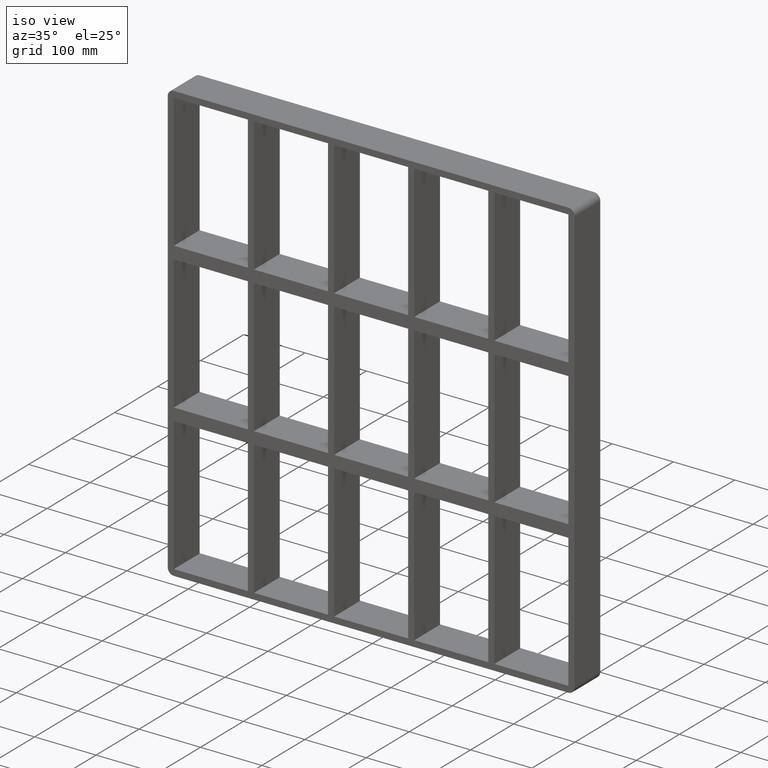
[diagram: clean part render]
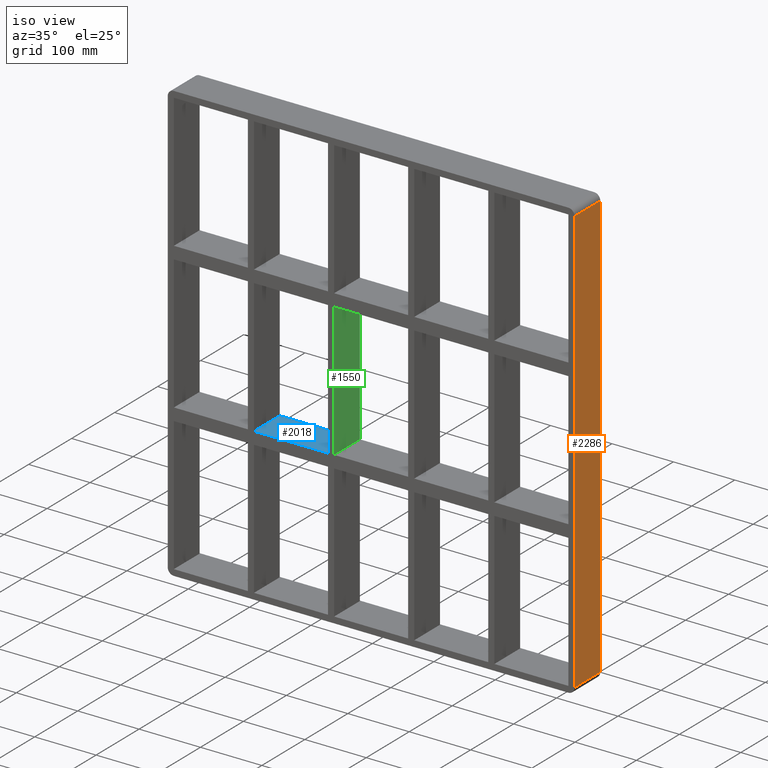
[diagram: same view with three faces highlighted in distinct colors, each labeled with its STEP entity id]
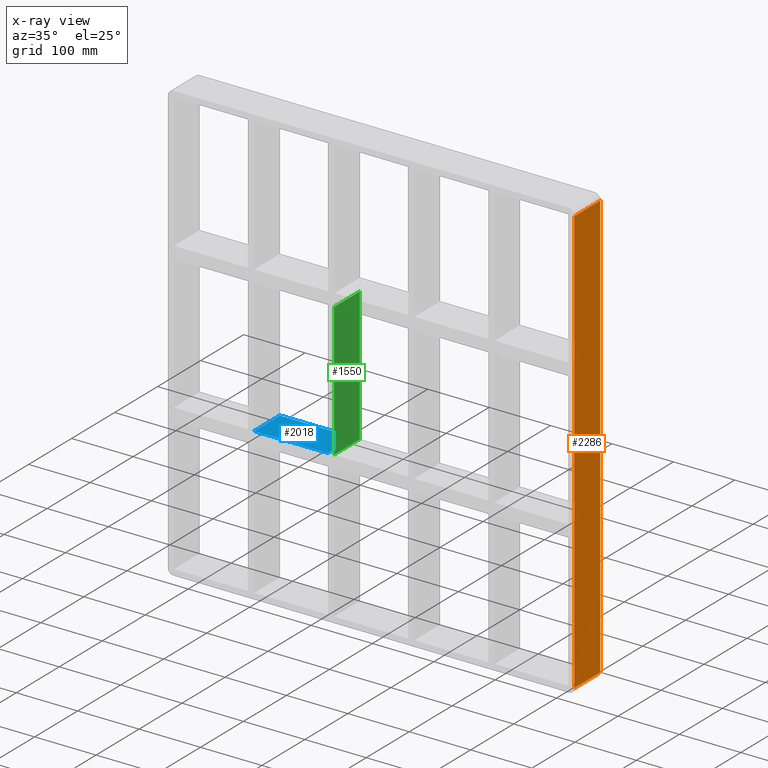
[diagram: x-ray of the same camera — body ghosted, the three highlighted faces saturated]
A machine part, iso view with three faces highlighted in distinct colors.
The next image is the same camera in x-ray (body ghosted, the three faces saturated) — at least one of them is partly hidden behind the body in this view.
Their STEP definitions:

[orange] entity #2286 — the highlighted planar face has unit normal (1, 0, 0).
#847=CARTESIAN_POINT('',(331.25,57.0,-347.0));
#848=VERTEX_POINT('',#847);
#898=CARTESIAN_POINT('',(331.25,57.0,347.0));
#899=VERTEX_POINT('',#898);
#907=CARTESIAN_POINT('',(331.25,57.0,347.0));
#908=DIRECTION('',(0.0,0.0,-1.0));
#909=VECTOR('',#908,694.0);
#910=LINE('',#907,#909);
#911=EDGE_CURVE('',#899,#848,#910,.T.);
#1669=CARTESIAN_POINT('',(331.25,-3.0,-347.0));
#1670=VERTEX_POINT('',#1669);
#1680=CARTESIAN_POINT('',(331.25,-3.0,347.0));
#1681=VERTEX_POINT('',#1680);
#1682=CARTESIAN_POINT('',(331.25,-3.0,-347.0));
#1683=DIRECTION('',(0.0,0.0,1.0));
#1684=VECTOR('',#1683,694.0);
#1685=LINE('',#1682,#1684);
#1686=EDGE_CURVE('',#1670,#1681,#1685,.T.);
#2254=CARTESIAN_POINT('',(331.25,57.0,-347.0));
#2255=DIRECTION('',(0.0,-1.0,0.0));
#2256=VECTOR('',#2255,60.0);
#2257=LINE('',#2254,#2256);
#2258=EDGE_CURVE('',#848,#1670,#2257,.T.);
#2270=CARTESIAN_POINT('',(331.25,0.0,357.0));
#2271=DIRECTION('',(1.0,0.0,0.0));
#2272=DIRECTION('',(0.0,0.0,-1.0));
#2273=AXIS2_PLACEMENT_3D('',#2270,#2271,#2272);
#2274=PLANE('',#2273);
#2275=ORIENTED_EDGE('',*,*,#2258,.F.);
#2276=ORIENTED_EDGE('',*,*,#911,.F.);
#2277=CARTESIAN_POINT('',(331.25,-3.0,347.0));
#2278=DIRECTION('',(0.0,1.0,0.0));
#2279=VECTOR('',#2278,60.0);
#2280=LINE('',#2277,#2279);
#2281=EDGE_CURVE('',#1681,#899,#2280,.T.);
#2282=ORIENTED_EDGE('',*,*,#2281,.F.);
#2283=ORIENTED_EDGE('',*,*,#1686,.F.);
#2284=EDGE_LOOP('',(#2275,#2276,#2282,#2283));
#2285=FACE_OUTER_BOUND('',#2284,.T.);
#2286=ADVANCED_FACE('',(#2285),#2274,.T.);

[blue] entity #2018 — the highlighted planar face has unit normal (0, 0, 1).
#1046=CARTESIAN_POINT('',(-190.75000000000728,57.0,-109.00000000000006));
#1047=VERTEX_POINT('',#1046);
#1054=CARTESIAN_POINT('',(-70.250000000001322,57.0,-109.00000000000006));
#1055=VERTEX_POINT('',#1054);
#1056=CARTESIAN_POINT('',(-190.75000000000728,57.0,-109.00000000000006));
#1057=DIRECTION('',(1.0,0.0,0.0));
#1058=VECTOR('',#1057,120.50000000000591);
#1059=LINE('',#1056,#1058);
#1060=EDGE_CURVE('',#1047,#1055,#1059,.T.);
#1479=CARTESIAN_POINT('',(-70.250000000001322,-3.0,-109.00000000000006));
#1480=VERTEX_POINT('',#1479);
#1481=CARTESIAN_POINT('',(-70.250000000001307,-3.0,-109.00000000000006));
#1482=DIRECTION('',(0.0,1.0,0.0));
#1483=VECTOR('',#1482,60.0);
#1484=LINE('',#1481,#1483);
#1485=EDGE_CURVE('',#1480,#1055,#1484,.T.);
#1784=CARTESIAN_POINT('',(-190.75000000000728,-3.0,-109.00000000000006));
#1785=VERTEX_POINT('',#1784);
#1786=CARTESIAN_POINT('',(-190.75000000000728,-3.0,-109.00000000000006));
#1787=DIRECTION('',(1.0,0.0,0.0));
#1788=VECTOR('',#1787,120.50000000000591);
#1789=LINE('',#1786,#1788);
#1790=EDGE_CURVE('',#1785,#1480,#1789,.T.);
#2002=CARTESIAN_POINT('',(-321.24999999999966,-3.0,-109.00000000000006));
#2003=DIRECTION('',(0.0,0.0,1.0));
#2004=DIRECTION('',(1.0,0.0,0.0));
#2005=AXIS2_PLACEMENT_3D('',#2002,#2003,#2004);
#2006=PLANE('',#2005);
#2007=ORIENTED_EDGE('',*,*,#1485,.T.);
#2008=ORIENTED_EDGE('',*,*,#1060,.F.);
#2009=CARTESIAN_POINT('',(-190.75000000000728,-3.0,-109.00000000000006));
#2010=DIRECTION('',(0.0,1.0,0.0));
#2011=VECTOR('',#2010,60.0);
#2012=LINE('',#2009,#2011);
#2013=EDGE_CURVE('',#1785,#1047,#2012,.T.);
#2014=ORIENTED_EDGE('',*,*,#2013,.F.);
#2015=ORIENTED_EDGE('',*,*,#1790,.T.);
#2016=EDGE_LOOP('',(#2007,#2008,#2014,#2015));
#2017=FACE_OUTER_BOUND('',#2016,.T.);
#2018=ADVANCED_FACE('',(#2017),#2006,.T.);

[green] entity #1550 — the highlighted planar face has unit normal (1, 0, 0).
#163=CARTESIAN_POINT('',(-60.250000000007304,-3.0,108.99999999999065));
#164=VERTEX_POINT('',#163);
#171=CARTESIAN_POINT('',(-60.250000000007304,57.0,108.99999999999065));
#172=VERTEX_POINT('',#171);
#173=CARTESIAN_POINT('',(-60.250000000007248,57.0,108.99999999999065));
#174=DIRECTION('',(0.0,-1.0,0.0));
#175=VECTOR('',#174,60.0);
#176=LINE('',#173,#175);
#177=EDGE_CURVE('',#172,#164,#176,.T.);
#1021=CARTESIAN_POINT('',(-60.250000000007269,57.0,-109.00000000000006));
#1022=VERTEX_POINT('',#1021);
#1023=CARTESIAN_POINT('',(-60.250000000007269,57.0,108.99999999999065));
#1024=DIRECTION('',(0.0,0.0,-1.0));
#1025=VECTOR('',#1024,217.99999999999071);
#1026=LINE('',#1023,#1025);
#1027=EDGE_CURVE('',#172,#1022,#1026,.T.);
#1527=CARTESIAN_POINT('',(-60.250000000007269,-3.0,347.00000000000011));
#1528=DIRECTION('',(1.0,0.0,0.0));
#1529=DIRECTION('',(0.0,0.0,-1.0));
#1530=AXIS2_PLACEMENT_3D('',#1527,#1528,#1529);
#1531=PLANE('',#1530);
#1532=ORIENTED_EDGE('',*,*,#177,.T.);
#1533=CARTESIAN_POINT('',(-60.250000000007269,-3.0,-109.00000000000006));
#1534=VERTEX_POINT('',#1533);
#1535=CARTESIAN_POINT('',(-60.250000000007269,-3.0,108.99999999999065));
#1536=DIRECTION('',(0.0,0.0,-1.0));
#1537=VECTOR('',#1536,217.99999999999071);
#1538=LINE('',#1535,#1537);
#1539=EDGE_CURVE('',#164,#1534,#1538,.T.);
#1540=ORIENTED_EDGE('',*,*,#1539,.T.);
#1541=CARTESIAN_POINT('',(-60.250000000007248,57.0,-109.00000000000006));
#1542=DIRECTION('',(0.0,-1.0,0.0));
#1543=VECTOR('',#1542,60.0);
#1544=LINE('',#1541,#1543);
#1545=EDGE_CURVE('',#1022,#1534,#1544,.T.);
#1546=ORIENTED_EDGE('',*,*,#1545,.F.);
#1547=ORIENTED_EDGE('',*,*,#1027,.F.);
#1548=EDGE_LOOP('',(#1532,#1540,#1546,#1547));
#1549=FACE_OUTER_BOUND('',#1548,.T.);
#1550=ADVANCED_FACE('',(#1549),#1531,.T.);